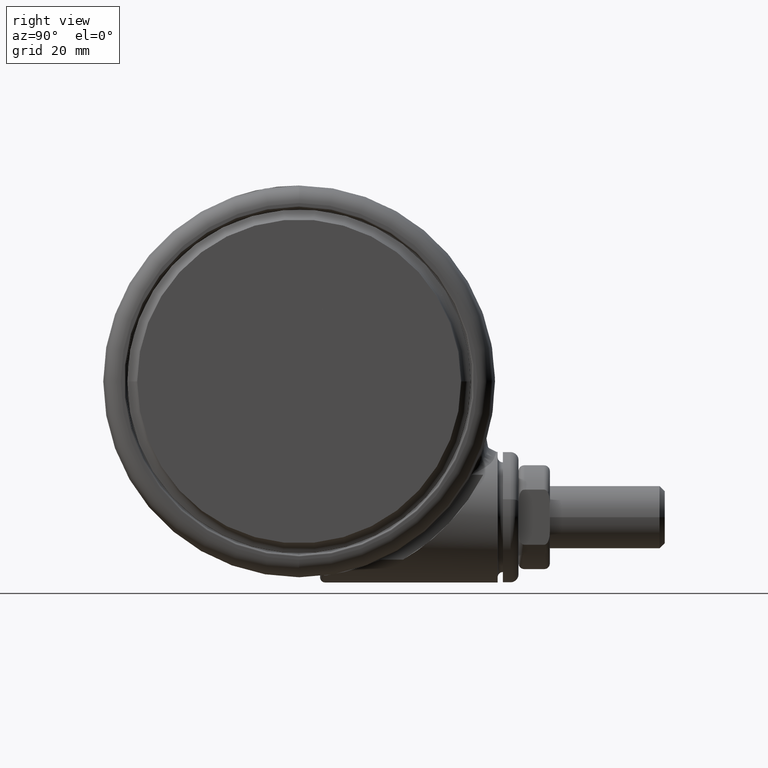
[diagram: clean part render]
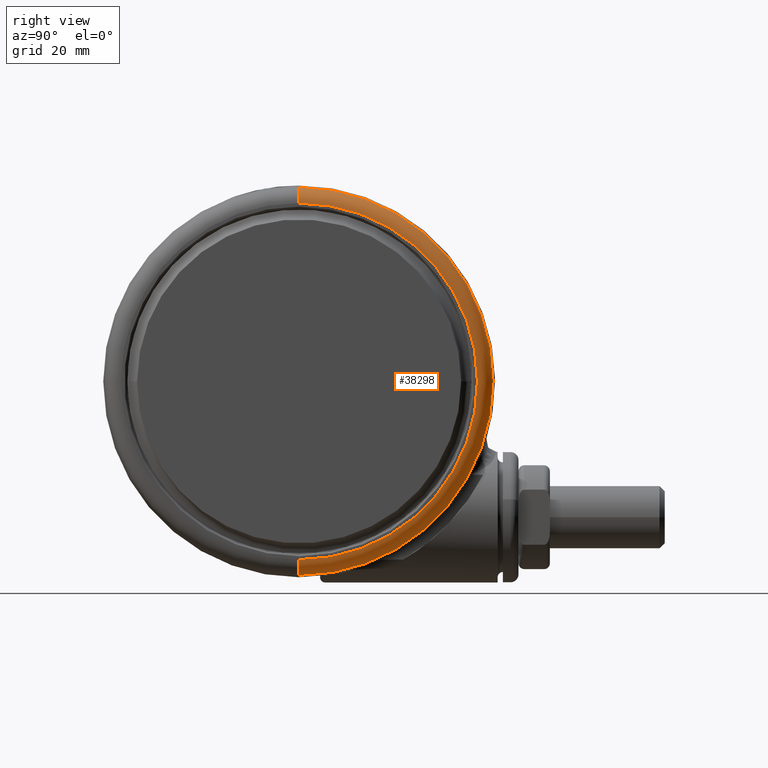
[diagram: same view with one face highlighted and labeled with its STEP entity id]
A machine part, right view. The second image highlights one B-rep face of the part: STEP entity #38298.
In plain terms, the highlighted toroidal blend (fillet) surface has major radius 34.1304 mm and minor (blend) radius 3 mm.
Its self-contained STEP definition (entity closure, byte-faithful):
#576 = DIRECTION ( 'NONE',  ( -3.275157922644210200E-015, 1.000000000000000000, 0.0000000000000000000 ) ) ;
#2509 = CIRCLE ( 'NONE', #44521, 37.12628851691039200 ) ;
#2963 = CARTESIAN_POINT ( 'NONE',  ( -1.215944579745338400E-013, 37.12628851691037800, -4.642992131271287600 ) ) ;
#5850 = VERTEX_POINT ( 'NONE', #13585 ) ;
#7724 = CARTESIAN_POINT ( 'NONE',  ( 1.123252400555720600E-013, -34.13039991264669500, -1.800000000000110600 ) ) ;
#12568 = ORIENTED_EDGE ( 'NONE', *, *, #18129, .F. ) ;
#13585 = CARTESIAN_POINT ( 'NONE',  ( 1.170477989348882900E-013, -37.12628851691040700, -4.642992131271287600 ) ) ;
#15048 = VERTEX_POINT ( 'NONE', #53875 ) ;
#15966 = CARTESIAN_POINT ( 'NONE',  ( 0.0000000000000000000, -1.387778780781445700E-014, -4.800000000000098400 ) ) ;
#17069 = CARTESIAN_POINT ( 'NONE',  ( -1.117824496769200400E-013, 34.13039991264666600, -4.800000000000098400 ) ) ;
#17771 = DIRECTION ( 'NONE',  ( 0.0000000000000000000, 0.0000000000000000000, 1.000000000000000000 ) ) ;
#18129 = EDGE_CURVE ( 'NONE', #44287, #15048, #42057, .T. ) ;
#18288 = AXIS2_PLACEMENT_3D ( 'NONE', #17069, #48442, #21548 ) ;
#18731 = ORIENTED_EDGE ( 'NONE', *, *, #33130, .T. ) ;
#21006 = CARTESIAN_POINT ( 'NONE',  ( 1.076026811762558600E-013, -34.13039991264669500, -4.800000000000098400 ) ) ;
#21548 = DIRECTION ( 'NONE',  ( -3.275157922644208200E-015, 1.000000000000000000, 0.0000000000000000000 ) ) ;
#24121 = EDGE_CURVE ( 'NONE', #15048, #33549, #33718, .T. ) ;
#24441 = ORIENTED_EDGE ( 'NONE', *, *, #43025, .T. ) ;
#24586 = TOROIDAL_SURFACE ( 'NONE', #29927, 34.13039991264668100, 2.999999999999988000 ) ;
#24954 = DIRECTION ( 'NONE',  ( -3.275157922644210200E-015, 1.000000000000000000, 0.0000000000000000000 ) ) ;
#25512 = DIRECTION ( 'NONE',  ( 3.152693242729476600E-015, -1.000000000000000000, 0.0000000000000000000 ) ) ;
#27380 = DIRECTION ( 'NONE',  ( 0.0000000000000000000, 0.0000000000000000000, 1.000000000000000000 ) ) ;
#29927 = AXIS2_PLACEMENT_3D ( 'NONE', #15966, #47355, #24954 ) ;
#33130 = EDGE_CURVE ( 'NONE', #5850, #33549, #38652, .T. ) ;
#33549 = VERTEX_POINT ( 'NONE', #7724 ) ;
#33718 = CIRCLE ( 'NONE', #57312, 34.13039991264668100 ) ;
#38298 = ADVANCED_FACE ( 'NONE', ( #48484 ), #24586, .T. ) ;
#38623 = AXIS2_PLACEMENT_3D ( 'NONE', #21006, #52395, #25512 ) ;
#38652 = CIRCLE ( 'NONE', #38623, 2.999999999999988900 ) ;
#42057 = CIRCLE ( 'NONE', #18288, 2.999999999999988900 ) ;
#43025 = EDGE_CURVE ( 'NONE', #44287, #5850, #2509, .T. ) ;
#44287 = VERTEX_POINT ( 'NONE', #2963 ) ;
#44521 = AXIS2_PLACEMENT_3D ( 'NONE', #44689, #17771, #49154 ) ;
#44689 = CARTESIAN_POINT ( 'NONE',  ( 0.0000000000000000000, -1.387778780781445700E-014, -4.642992131271287600 ) ) ;
#47355 = DIRECTION ( 'NONE',  ( 0.0000000000000000000, 0.0000000000000000000, 1.000000000000000000 ) ) ;
#48442 = DIRECTION ( 'NONE',  ( 1.000000000000000000, 3.275157922644210200E-015, -0.0000000000000000000 ) ) ;
#48484 = FACE_OUTER_BOUND ( 'NONE', #56234, .T. ) ;
#49154 = DIRECTION ( 'NONE',  ( -3.275157922644210200E-015, 1.000000000000000000, 0.0000000000000000000 ) ) ;
#49204 = ORIENTED_EDGE ( 'NONE', *, *, #24121, .F. ) ;
#52395 = DIRECTION ( 'NONE',  ( -1.000000000000000000, -3.152693242729475100E-015, 0.0000000000000000000 ) ) ;
#53875 = CARTESIAN_POINT ( 'NONE',  ( -1.117824496769200400E-013, 34.13039991264666600, -1.800000000000110600 ) ) ;
#54241 = CARTESIAN_POINT ( 'NONE',  ( 0.0000000000000000000, -1.387778780781445700E-014, -1.800000000000110600 ) ) ;
#56234 = EDGE_LOOP ( 'NONE', ( #24441, #18731, #49204, #12568 ) ) ;
#57312 = AXIS2_PLACEMENT_3D ( 'NONE', #54241, #27380, #576 ) ;